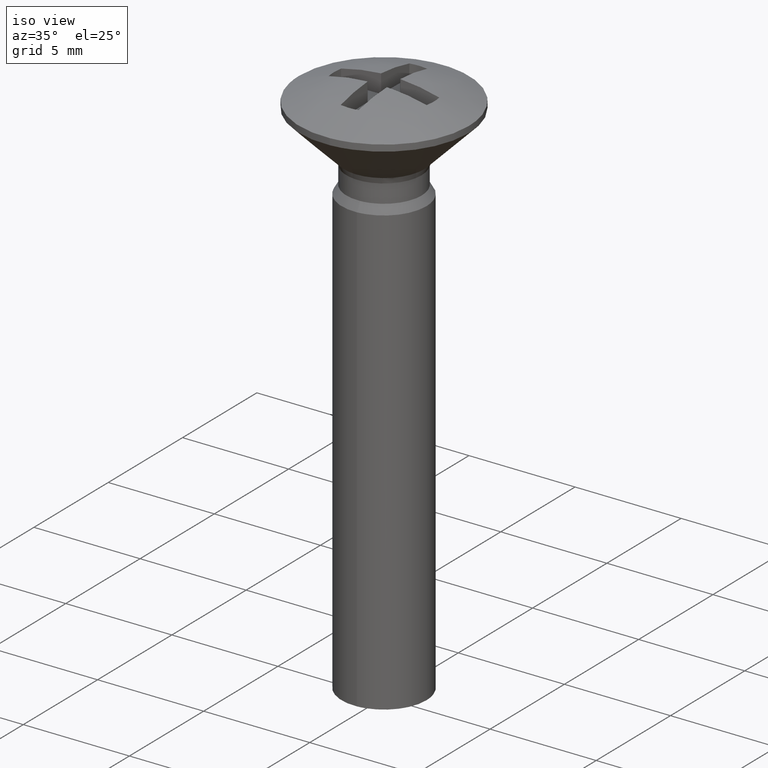
[diagram: clean part render]
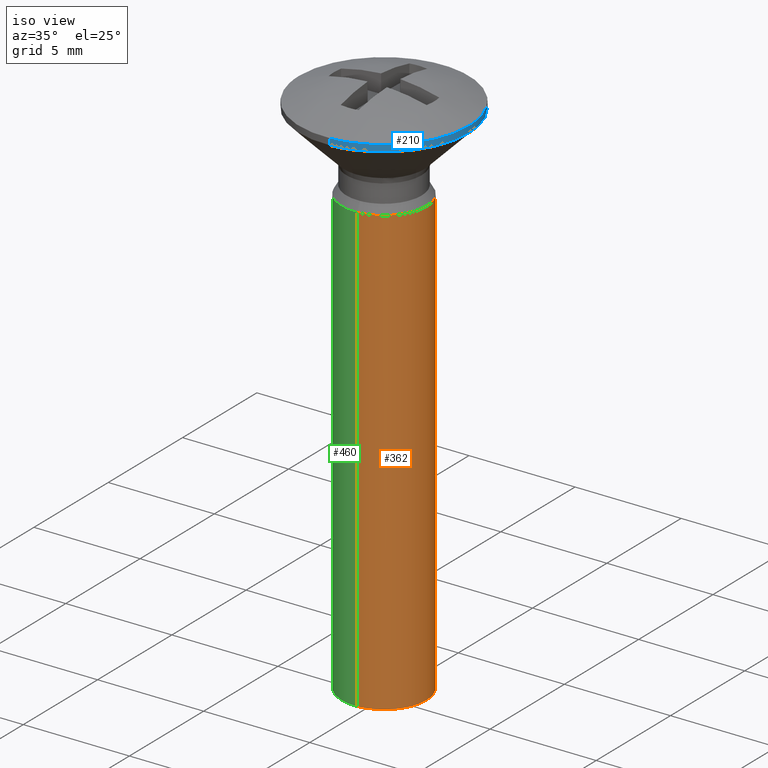
[diagram: same view with three faces highlighted in distinct colors, each labeled with its STEP entity id]
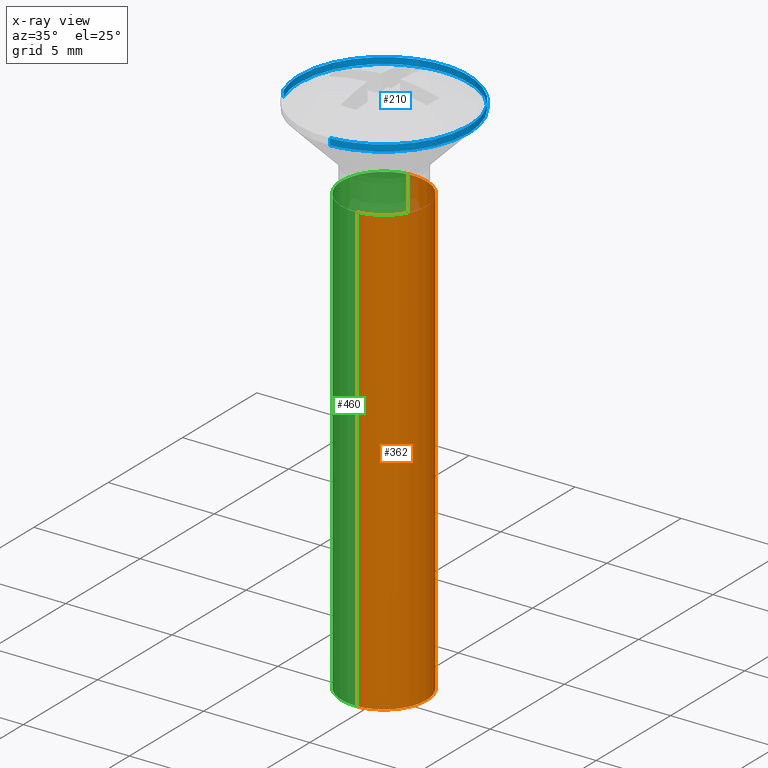
[diagram: x-ray of the same camera — body ghosted, the three highlighted faces saturated]
A machine part, iso view with three faces highlighted in distinct colors.
The next image is the same camera in x-ray (body ghosted, the three faces saturated) — at least one of them is partly hidden behind the body in this view.
Their STEP definitions:

[orange] entity #362 — the highlighted face is a freeform B-spline surface patch.
#260=CARTESIAN_POINT('',(-0.236068469313517,1.986019052727332,-3.425594999999999));
#261=CARTESIAN_POINT('',(-0.179229457275955,1.992775230897211,-3.425594999999999));
#262=CARTESIAN_POINT('',(-0.122097079069714,1.996269596843733,-3.425594999999999));
#263=CARTESIAN_POINT('',(1.874172517774020,2.118366675913447,-3.425594999999998));
#264=CARTESIAN_POINT('',(1.996269596843733,0.122097079069714,-3.425594999999999));
#265=CARTESIAN_POINT('',(2.118366675913447,-1.874172517774020,-3.425594999999998));
#266=CARTESIAN_POINT('',(0.122097079069714,-1.996269596843733,-3.425594999999999));
#267=CARTESIAN_POINT('',(-0.236068469313517,1.986019052727332,-25.539360125000009));
#268=CARTESIAN_POINT('',(-0.179229457275955,1.992775230897211,-25.539360125000009));
#269=CARTESIAN_POINT('',(-0.122097079069714,1.996269596843733,-25.539360125000009));
#270=CARTESIAN_POINT('',(1.874172517774020,2.118366675913447,-25.539360125000009));
#271=CARTESIAN_POINT('',(1.996269596843733,0.122097079069714,-25.539360125000009));
#272=CARTESIAN_POINT('',(2.118366675913447,-1.874172517774020,-25.539360125000009));
#273=CARTESIAN_POINT('',(0.122097079069714,-1.996269596843733,-25.539360125000009));
#281=(BOUNDED_SURFACE()B_SPLINE_SURFACE(2,1,((#260,#267),(#261,#268),(#262,#269),(#263,#270),(#264,#271),(#265,#272),(#266,#273)),.UNSPECIFIED.,.F.,.F.,.U.)B_SPLINE_SURFACE_WITH_KNOTS((3,2,2,3),(2,2),(0.0,0.132548339959391,3.446256838944149,6.759965337928908),(0.0,22.113765125000011),.UNSPECIFIED.)GEOMETRIC_REPRESENTATION_ITEM()RATIONAL_B_SPLINE_SURFACE(((0.977505800795127,0.977505800795127),(0.988284271247462,0.988284271247462),(1.0,1.0),(0.707106781186548,0.707106781186548),(1.0,1.0),(0.707106781186548,0.707106781186548),(1.0,1.0)))REPRESENTATION_ITEM('')SURFACE());
#282=CARTESIAN_POINT('',(-0.236066474314863,1.986019289861131,-24.999999999999989));
#283=VERTEX_POINT('',#282);
#284=CARTESIAN_POINT('',(2.0,0.0,-25.0));
#285=VERTEX_POINT('',#284);
#286=CARTESIAN_POINT('',(-0.236066474314863,1.986019289861132,-24.999999999999996));
#287=CARTESIAN_POINT('',(-0.118447231259208,2.0,-24.999999999999996));
#288=CARTESIAN_POINT('',(0.0,2.0,-25.0));
#289=CARTESIAN_POINT('',(2.000000000000000,2.000000000000000,-25.0));
#290=CARTESIAN_POINT('',(2.0,0.0,-25.0));
#298=(BOUNDED_CURVE()B_SPLINE_CURVE(2,(#286,#287,#288,#289,#290),.UNSPECIFIED.,.F.,.U.)B_SPLINE_CURVE_WITH_KNOTS((3,2,3),(0.229562643283036,0.250000000000000,0.500000000000000),.UNSPECIFIED.)CURVE()GEOMETRIC_REPRESENTATION_ITEM()RATIONAL_B_SPLINE_CURVE((0.956027086939192,0.976056147228519,1.0,0.707106781186548,1.0))REPRESENTATION_ITEM(''));
#299=EDGE_CURVE('',#283,#285,#298,.T.);
#300=ORIENTED_EDGE('',*,*,#299,.F.);
#301=CARTESIAN_POINT('',(-0.236066498881312,1.986019286941086,-3.951800000000000));
#302=VERTEX_POINT('',#301);
#303=CARTESIAN_POINT('',(-0.236066498881312,1.986019286941086,-3.951800000000000));
#304=CARTESIAN_POINT('',(-0.236066474314863,1.986019289861131,-24.999999999999989));
#305=QUASI_UNIFORM_CURVE('',1,(#303,#304),.UNSPECIFIED.,.F.,.U.);
#306=EDGE_CURVE('',#302,#283,#305,.T.);
#307=ORIENTED_EDGE('',*,*,#306,.F.);
#308=CARTESIAN_POINT('',(2.0,0.0,-3.951800000000000));
#309=VERTEX_POINT('',#308);
#310=CARTESIAN_POINT('',(-0.236066498881312,1.986019286941087,-3.951800000000001));
#311=CARTESIAN_POINT('',(-0.118447243672286,2.000000000000000,-3.951800000000000));
#312=CARTESIAN_POINT('',(0.0,2.0,-3.951800000000000));
#313=CARTESIAN_POINT('',(2.000000000000000,2.000000000000000,-3.951800000000000));
#314=CARTESIAN_POINT('',(2.0,0.0,-3.951800000000000));
#322=(BOUNDED_CURVE()B_SPLINE_CURVE(2,(#310,#311,#312,#313,#314),.UNSPECIFIED.,.F.,.U.)B_SPLINE_CURVE_WITH_KNOTS((3,2,3),(0.229562641192517,0.250000000000000,0.500000000000000),.UNSPECIFIED.)CURVE()GEOMETRIC_REPRESENTATION_ITEM()RATIONAL_B_SPLINE_CURVE((0.956027082841683,0.976056144779324,1.0,0.707106781186548,1.0))REPRESENTATION_ITEM(''));
#323=EDGE_CURVE('',#302,#309,#322,.T.);
#324=ORIENTED_EDGE('',*,*,#323,.T.);
#325=CARTESIAN_POINT('',(0.122097079094370,-1.996269596844734,-3.951800000008670));
#326=VERTEX_POINT('',#325);
#327=CARTESIAN_POINT('',(2.0,0.0,-3.951800000000000));
#328=CARTESIAN_POINT('',(2.0,-1.881412133718839,-3.951800000000000));
#329=CARTESIAN_POINT('',(0.122097079094370,-1.996269596844734,-3.951800000008669));
#337=(BOUNDED_CURVE()B_SPLINE_CURVE(2,(#327,#328,#329),.UNSPECIFIED.,.F.,.U.)B_SPLINE_CURVE_WITH_KNOTS((3,3),(0.500000000000000,0.739332962233496),.UNSPECIFIED.)CURVE()GEOMETRIC_REPRESENTATION_ITEM()RATIONAL_B_SPLINE_CURVE((1.0,0.719603993293092,0.976072041655044))REPRESENTATION_ITEM(''));
#338=EDGE_CURVE('',#309,#326,#337,.T.);
#339=ORIENTED_EDGE('',*,*,#338,.T.);
#340=CARTESIAN_POINT('',(0.122097079092342,-1.996269596842350,-25.0));
#341=VERTEX_POINT('',#340);
#342=CARTESIAN_POINT('',(0.122097079094370,-1.996269596844734,-3.951800000008670));
#343=CARTESIAN_POINT('',(0.122097079092342,-1.996269596842350,-25.0));
#344=QUASI_UNIFORM_CURVE('',1,(#342,#343),.UNSPECIFIED.,.F.,.U.);
#345=EDGE_CURVE('',#326,#341,#344,.T.);
#346=ORIENTED_EDGE('',*,*,#345,.T.);
#347=CARTESIAN_POINT('',(2.0,0.0,-25.0));
#348=CARTESIAN_POINT('',(2.000000000000000,-1.881412133768662,-25.000000000000004));
#349=CARTESIAN_POINT('',(0.122097079092342,-1.996269596842350,-25.0));
#357=(BOUNDED_CURVE()B_SPLINE_CURVE(2,(#347,#348,#349),.UNSPECIFIED.,.F.,.U.)B_SPLINE_CURVE_WITH_KNOTS((3,3),(0.500000000000000,0.739332962238057),.UNSPECIFIED.)CURVE()GEOMETRIC_REPRESENTATION_ITEM()RATIONAL_B_SPLINE_CURVE((1.0,0.719603993287748,0.976072041664819))REPRESENTATION_ITEM(''));
#358=EDGE_CURVE('',#285,#341,#357,.T.);
#359=ORIENTED_EDGE('',*,*,#358,.F.);
#360=EDGE_LOOP('',(#300,#307,#324,#339,#346,#359));
#361=FACE_OUTER_BOUND('',#360,.T.);
#362=ADVANCED_FACE('',(#361),#281,.T.);

[blue] entity #210 — the highlighted face is a freeform B-spline surface patch.
#44=CARTESIAN_POINT('',(-3.744574315106628,-1.406471897566288,0.007444087192802));
#45=CARTESIAN_POINT('',(-3.955856077460602,-0.843957806861633,0.007444087192802));
#46=CARTESIAN_POINT('',(-3.992539193687467,-0.244194158139428,0.007444087192802));
#47=CARTESIAN_POINT('',(-4.236733351826894,3.748345035548039,0.007444087192802));
#48=CARTESIAN_POINT('',(-0.244194158139428,3.992539193687467,0.007444087192802));
#49=CARTESIAN_POINT('',(3.748345035548039,4.236733351826894,0.007444087192802));
#50=CARTESIAN_POINT('',(3.992539193687467,0.244194158139428,0.007444087192802));
#51=CARTESIAN_POINT('',(4.236733351826894,-3.748345035548039,0.007444087192802));
#52=CARTESIAN_POINT('',(0.244194158139428,-3.992539193687467,0.007444087192802));
#53=CARTESIAN_POINT('',(-3.744574315106628,-1.406471897566288,-0.307686102179810));
#54=CARTESIAN_POINT('',(-3.955856077460602,-0.843957806861633,-0.307686102179810));
#55=CARTESIAN_POINT('',(-3.992539193687467,-0.244194158139428,-0.307686102179810));
#56=CARTESIAN_POINT('',(-4.236733351826894,3.748345035548039,-0.307686102179810));
#57=CARTESIAN_POINT('',(-0.244194158139428,3.992539193687467,-0.307686102179810));
#58=CARTESIAN_POINT('',(3.748345035548039,4.236733351826894,-0.307686102179810));
#59=CARTESIAN_POINT('',(3.992539193687467,0.244194158139428,-0.307686102179810));
#60=CARTESIAN_POINT('',(4.236733351826894,-3.748345035548039,-0.307686102179810));
#61=CARTESIAN_POINT('',(0.244194158139428,-3.992539193687467,-0.307686102179810));
#69=(BOUNDED_SURFACE()B_SPLINE_SURFACE(2,1,((#44,#53),(#45,#54),(#46,#55),(#47,#56),(#48,#57),(#49,#58),(#50,#59),(#51,#60),(#52,#61)),.UNSPECIFIED.,.F.,.F.,.U.)B_SPLINE_SURFACE_WITH_KNOTS((3,2,2,2,3),(2,2),(0.0,1.325483399593904,7.952900397563421,14.580317395532941,21.207734393502459),(0.0,0.315130189372612),.UNSPECIFIED.)GEOMETRIC_REPRESENTATION_ITEM()RATIONAL_B_SPLINE_SURFACE(((0.906274169979695,0.906274169979695),(0.941421356237309,0.941421356237309),(1.0,1.0),(0.707106781186548,0.707106781186548),(1.0,1.0),(0.707106781186548,0.707106781186548),(1.0,1.0),(0.707106781186548,0.707106781186548),(1.0,1.0)))REPRESENTATION_ITEM('')SURFACE());
#70=CARTESIAN_POINT('',(-3.744574315104922,-1.406471897570834,-0.000054549080193));
#71=VERTEX_POINT('',#70);
#72=CARTESIAN_POINT('',(-4.0,0.0,-0.000054549080193));
#73=VERTEX_POINT('',#72);
#74=CARTESIAN_POINT('',(-3.744574315104922,-1.406471897570833,-0.000054549080193));
#75=CARTESIAN_POINT('',(-4.0,-0.726429544272058,-0.000054549080193));
#76=CARTESIAN_POINT('',(-4.0,0.0,-0.000054549080193));
#84=(BOUNDED_CURVE()B_SPLINE_CURVE(2,(#74,#75,#76),.UNSPECIFIED.,.F.,.U.)B_SPLINE_CURVE_WITH_KNOTS((3,3),(0.940284170898526,1.0),.UNSPECIFIED.)CURVE()GEOMETRIC_REPRESENTATION_ITEM()RATIONAL_B_SPLINE_CURVE((0.893499554635297,0.930038554401421,1.0))REPRESENTATION_ITEM(''));
#85=EDGE_CURVE('',#71,#73,#84,.T.);
#86=ORIENTED_EDGE('',*,*,#85,.T.);
#87=CARTESIAN_POINT('',(4.0,0.0,-0.000054549080193));
#88=VERTEX_POINT('',#87);
#89=CARTESIAN_POINT('',(-4.0,0.0,-0.000054549080193));
#90=CARTESIAN_POINT('',(-4.000000000000000,4.000000000000000,-0.000054549080193));
#91=CARTESIAN_POINT('',(0.0,4.0,-0.000054549080193));
#92=CARTESIAN_POINT('',(4.000000000000000,4.000000000000000,-0.000054549080193));
#93=CARTESIAN_POINT('',(4.0,0.0,-0.000054549080193));
#101=(BOUNDED_CURVE()B_SPLINE_CURVE(2,(#89,#90,#91,#92,#93),.UNSPECIFIED.,.F.,.U.)B_SPLINE_CURVE_WITH_KNOTS((3,2,3),(0.0,0.250000000000000,0.500000000000000),.UNSPECIFIED.)CURVE()GEOMETRIC_REPRESENTATION_ITEM()RATIONAL_B_SPLINE_CURVE((1.0,0.707106781186548,1.0,0.707106781186548,1.0))REPRESENTATION_ITEM(''));
#102=EDGE_CURVE('',#73,#88,#101,.T.);
#103=ORIENTED_EDGE('',*,*,#102,.T.);
#104=CARTESIAN_POINT('',(0.244187181445966,-3.992539620388083,-0.000054549079474));
#105=VERTEX_POINT('',#104);
#106=CARTESIAN_POINT('',(4.0,0.0,-0.000054549080193));
#107=CARTESIAN_POINT('',(4.0,-3.762830855196727,-0.000054549080193));
#108=CARTESIAN_POINT('',(0.244187181445966,-3.992539620388083,-0.000054549079474));
#116=(BOUNDED_CURVE()B_SPLINE_CURVE(2,(#106,#107,#108),.UNSPECIFIED.,.F.,.U.)B_SPLINE_CURVE_WITH_KNOTS((3,3),(0.500000000000000,0.739333263755935),.UNSPECIFIED.)CURVE()GEOMETRIC_REPRESENTATION_ITEM()RATIONAL_B_SPLINE_CURVE((1.0,0.719603640037580,0.976072687875880))REPRESENTATION_ITEM(''));
#117=EDGE_CURVE('',#88,#105,#116,.T.);
#118=ORIENTED_EDGE('',*,*,#117,.T.);
#119=CARTESIAN_POINT('',(0.244187265558266,-3.992539615243847,-0.299999999999990));
#120=VERTEX_POINT('',#119);
#121=CARTESIAN_POINT('',(0.244187181445966,-3.992539620388083,-0.000054549079474));
#122=CARTESIAN_POINT('',(0.244187265558266,-3.992539615243847,-0.299999999999990));
#123=QUASI_UNIFORM_CURVE('',1,(#121,#122),.UNSPECIFIED.,.F.,.U.);
#124=EDGE_CURVE('',#105,#120,#123,.T.);
#125=ORIENTED_EDGE('',*,*,#124,.T.);
#126=CARTESIAN_POINT('',(4.0,0.0,-0.299999999999990));
#127=VERTEX_POINT('',#126);
#128=CARTESIAN_POINT('',(4.0,0.0,-0.299999999999990));
#129=CARTESIAN_POINT('',(4.000000000000001,-3.762830775775668,-0.299999999999990));
#130=CARTESIAN_POINT('',(0.244187265558266,-3.992539615243847,-0.299999999999990));
#138=(BOUNDED_CURVE()B_SPLINE_CURVE(2,(#128,#129,#130),.UNSPECIFIED.,.F.,.U.)B_SPLINE_CURVE_WITH_KNOTS((3,3),(0.500000000000000,0.739333260120827),.UNSPECIFIED.)CURVE()GEOMETRIC_REPRESENTATION_ITEM()RATIONAL_B_SPLINE_CURVE((1.0,0.719603644296375,0.976072680085130))REPRESENTATION_ITEM(''));
#139=EDGE_CURVE('',#127,#120,#138,.T.);
#140=ORIENTED_EDGE('',*,*,#139,.F.);
#141=CARTESIAN_POINT('',(1.001520016257078,3.872590561506795,-0.299999999995604));
#142=VERTEX_POINT('',#141);
#143=CARTESIAN_POINT('',(1.001520016257078,3.872590561506795,-0.299999999995604));
#144=CARTESIAN_POINT('',(4.000000000000001,3.097130911304047,-0.299999999999990));
#145=CARTESIAN_POINT('',(4.0,0.0,-0.299999999999990));
#153=(BOUNDED_CURVE()B_SPLINE_CURVE(2,(#143,#144,#145),.UNSPECIFIED.,.F.,.U.)B_SPLINE_CURVE_WITH_KNOTS((3,3),(0.292726229713621,0.500000000000000),.UNSPECIFIED.)CURVE()GEOMETRIC_REPRESENTATION_ITEM()RATIONAL_B_SPLINE_CURVE((0.916996154471756,0.757163672980889,1.0))REPRESENTATION_ITEM(''));
#154=EDGE_CURVE('',#142,#127,#153,.T.);
#155=ORIENTED_EDGE('',*,*,#154,.F.);
#156=CARTESIAN_POINT('',(-1.678368449808747,3.630851049919546,-0.299999999998079));
#157=VERTEX_POINT('',#156);
#158=CARTESIAN_POINT('',(-1.678368449808748,3.630851049919545,-0.299999999998079));
#159=CARTESIAN_POINT('',(-0.879780479976421,4.000000000000001,-0.299999999999990));
#160=CARTESIAN_POINT('',(0.0,4.0,-0.299999999999990));
#161=CARTESIAN_POINT('',(0.508864272044298,4.000000000000001,-0.299999999999990));
#162=CARTESIAN_POINT('',(1.001520016257078,3.872590561506795,-0.299999999995604));
#170=(BOUNDED_CURVE()B_SPLINE_CURVE(2,(#158,#159,#160,#161,#162),.UNSPECIFIED.,.F.,.U.)B_SPLINE_CURVE_WITH_KNOTS((3,2,3),(0.178730602232853,0.250000000000000,0.292726229713621),.UNSPECIFIED.)CURVE()GEOMETRIC_REPRESENTATION_ITEM()RATIONAL_B_SPLINE_CURVE((0.880611827927097,0.916502706740336,1.0,0.949943108205658,0.916996154471756))REPRESENTATION_ITEM(''));
#171=EDGE_CURVE('',#157,#142,#170,.T.);
#172=ORIENTED_EDGE('',*,*,#171,.F.);
#173=CARTESIAN_POINT('',(-4.0,0.0,-0.299999999999990));
#174=VERTEX_POINT('',#173);
#175=CARTESIAN_POINT('',(-4.0,0.0,-0.299999999999990));
#176=CARTESIAN_POINT('',(-4.000000000000000,2.557672036950856,-0.299999999999990));
#177=CARTESIAN_POINT('',(-1.678368449808747,3.630851049919546,-0.299999999998079));
#185=(BOUNDED_CURVE()B_SPLINE_CURVE(2,(#175,#176,#177),.UNSPECIFIED.,.F.,.U.)B_SPLINE_CURVE_WITH_KNOTS((3,3),(0.0,0.178730602232853),.UNSPECIFIED.)CURVE()GEOMETRIC_REPRESENTATION_ITEM()RATIONAL_B_SPLINE_CURVE((1.0,0.790604074446212,0.880611827927097))REPRESENTATION_ITEM(''));
#186=EDGE_CURVE('',#174,#157,#185,.T.);
#187=ORIENTED_EDGE('',*,*,#186,.F.);
#188=CARTESIAN_POINT('',(-3.744574315104923,-1.406471897570832,-0.299999999999990));
#189=VERTEX_POINT('',#188);
#190=CARTESIAN_POINT('',(-3.744574315104922,-1.406471897570832,-0.299999999999990));
#191=CARTESIAN_POINT('',(-4.000000000000001,-0.726429544272057,-0.299999999999990));
#192=CARTESIAN_POINT('',(-4.0,0.0,-0.299999999999990));
#200=(BOUNDED_CURVE()B_SPLINE_CURVE(2,(#190,#191,#192),.UNSPECIFIED.,.F.,.U.)B_SPLINE_CURVE_WITH_KNOTS((3,3),(0.940284170898526,1.0),.UNSPECIFIED.)CURVE()GEOMETRIC_REPRESENTATION_ITEM()RATIONAL_B_SPLINE_CURVE((0.893499554635297,0.930038554401421,1.0))REPRESENTATION_ITEM(''));
#201=EDGE_CURVE('',#189,#174,#200,.T.);
#202=ORIENTED_EDGE('',*,*,#201,.F.);
#203=CARTESIAN_POINT('',(-3.744574315104922,-1.406471897570834,-0.000054549080193));
#204=CARTESIAN_POINT('',(-3.744574315104923,-1.406471897570832,-0.299999999999990));
#205=QUASI_UNIFORM_CURVE('',1,(#203,#204),.UNSPECIFIED.,.F.,.U.);
#206=EDGE_CURVE('',#71,#189,#205,.T.);
#207=ORIENTED_EDGE('',*,*,#206,.F.);
#208=EDGE_LOOP('',(#86,#103,#118,#125,#140,#155,#172,#187,#202,#207));
#209=FACE_OUTER_BOUND('',#208,.T.);
#210=ADVANCED_FACE('',(#209),#69,.T.);

[green] entity #460 — the highlighted face is a freeform B-spline surface patch.
#282=CARTESIAN_POINT('',(-0.236066474314863,1.986019289861131,-24.999999999999989));
#283=VERTEX_POINT('',#282);
#301=CARTESIAN_POINT('',(-0.236066498881312,1.986019286941086,-3.951800000000000));
#302=VERTEX_POINT('',#301);
#303=CARTESIAN_POINT('',(-0.236066498881312,1.986019286941086,-3.951800000000000));
#304=CARTESIAN_POINT('',(-0.236066474314863,1.986019289861131,-24.999999999999989));
#305=QUASI_UNIFORM_CURVE('',1,(#303,#304),.UNSPECIFIED.,.F.,.U.);
#306=EDGE_CURVE('',#302,#283,#305,.T.);
#325=CARTESIAN_POINT('',(0.122097079094370,-1.996269596844734,-3.951800000008670));
#326=VERTEX_POINT('',#325);
#340=CARTESIAN_POINT('',(0.122097079092342,-1.996269596842350,-25.0));
#341=VERTEX_POINT('',#340);
#342=CARTESIAN_POINT('',(0.122097079094370,-1.996269596844734,-3.951800000008670));
#343=CARTESIAN_POINT('',(0.122097079092342,-1.996269596842350,-25.0));
#344=QUASI_UNIFORM_CURVE('',1,(#342,#343),.UNSPECIFIED.,.F.,.U.);
#345=EDGE_CURVE('',#326,#341,#344,.T.);
#363=CARTESIAN_POINT('',(0.122097079069714,-1.996269596843733,-3.425594999999999));
#364=CARTESIAN_POINT('',(-1.874172517774020,-2.118366675913447,-3.425594999999998));
#365=CARTESIAN_POINT('',(-1.996269596843733,-0.122097079069714,-3.425594999999999));
#366=CARTESIAN_POINT('',(-2.111572393465055,1.763086981679002,-3.425594999999998));
#367=CARTESIAN_POINT('',(-0.236068469313517,1.986019052727332,-3.425594999999999));
#368=CARTESIAN_POINT('',(0.122097079069714,-1.996269596843733,-25.539360125000009));
#369=CARTESIAN_POINT('',(-1.874172517774020,-2.118366675913447,-25.539360125000009));
#370=CARTESIAN_POINT('',(-1.996269596843733,-0.122097079069714,-25.539360125000009));
#371=CARTESIAN_POINT('',(-2.111572393465055,1.763086981679002,-25.539360125000009));
#372=CARTESIAN_POINT('',(-0.236068469313517,1.986019052727332,-25.539360125000009));
#380=(BOUNDED_SURFACE()B_SPLINE_SURFACE(2,1,((#363,#368),(#364,#369),(#365,#370),(#366,#371),(#367,#372)),.UNSPECIFIED.,.F.,.F.,.U.)B_SPLINE_SURFACE_WITH_KNOTS((3,2,3),(2,2),(0.0,3.313708498984759,6.494868658010128),(0.0,22.113765125000011),.UNSPECIFIED.)GEOMETRIC_REPRESENTATION_ITEM()RATIONAL_B_SPLINE_SURFACE(((1.0,1.0),(0.707106781186548,0.707106781186548),(1.0,1.0),(0.718822509939086,0.718822509939086),(0.977505800795127,0.977505800795127)))REPRESENTATION_ITEM('')SURFACE());
#381=CARTESIAN_POINT('',(-2.0,0.0,-25.0));
#382=VERTEX_POINT('',#381);
#383=CARTESIAN_POINT('',(-2.0,0.0,-25.0));
#384=CARTESIAN_POINT('',(-2.000000000000000,1.776350848845448,-25.000000000000011));
#385=CARTESIAN_POINT('',(-0.236066474314863,1.986019289861132,-24.999999999999996));
#393=(BOUNDED_CURVE()B_SPLINE_CURVE(2,(#383,#384,#385),.UNSPECIFIED.,.F.,.U.)B_SPLINE_CURVE_WITH_KNOTS((3,3),(0.0,0.229562643283036),.UNSPECIFIED.)CURVE()GEOMETRIC_REPRESENTATION_ITEM()RATIONAL_B_SPLINE_CURVE((1.0,0.731050633958029,0.956027086939192))REPRESENTATION_ITEM(''));
#394=EDGE_CURVE('',#382,#283,#393,.T.);
#395=ORIENTED_EDGE('',*,*,#394,.F.);
#396=CARTESIAN_POINT('',(0.122097079092342,-1.996269596842350,-25.0));
#397=CARTESIAN_POINT('',(0.061105526619869,-2.000000000000000,-25.0));
#398=CARTESIAN_POINT('',(0.0,-2.0,-25.0));
#399=CARTESIAN_POINT('',(-2.000000000000000,-2.000000000000000,-25.0));
#400=CARTESIAN_POINT('',(-2.0,0.0,-25.0));
#408=(BOUNDED_CURVE()B_SPLINE_CURVE(2,(#396,#397,#398,#399,#400),.UNSPECIFIED.,.F.,.U.)B_SPLINE_CURVE_WITH_KNOTS((3,2,3),(0.739332962238057,0.750000000000000,1.0),.UNSPECIFIED.)CURVE()GEOMETRIC_REPRESENTATION_ITEM()RATIONAL_B_SPLINE_CURVE((0.976072041664818,0.987502787898799,1.0,0.707106781186548,1.0))REPRESENTATION_ITEM(''));
#409=EDGE_CURVE('',#341,#382,#408,.T.);
#410=ORIENTED_EDGE('',*,*,#409,.F.);
#411=ORIENTED_EDGE('',*,*,#345,.F.);
#412=CARTESIAN_POINT('',(-1.872287157541096,-0.703235948826450,-3.951800000006558));
#413=VERTEX_POINT('',#412);
#414=CARTESIAN_POINT('',(0.122097079094370,-1.996269596844734,-3.951800000008670));
#415=CARTESIAN_POINT('',(0.061105526646322,-2.000000000000000,-3.951800000000000));
#416=CARTESIAN_POINT('',(0.0,-2.0,-3.951800000000000));
#417=CARTESIAN_POINT('',(-1.385219191322495,-2.000000000000000,-3.951800000000000));
#418=CARTESIAN_POINT('',(-1.872287157541095,-0.703235948826450,-3.951800000006558));
#426=(BOUNDED_CURVE()B_SPLINE_CURVE(2,(#414,#415,#416,#417,#418),.UNSPECIFIED.,.F.,.U.)B_SPLINE_CURVE_WITH_KNOTS((3,2,3),(0.739332962233497,0.750000000000000,0.940284170891827),.UNSPECIFIED.)CURVE()GEOMETRIC_REPRESENTATION_ITEM()RATIONAL_B_SPLINE_CURVE((0.976072041655045,0.987502787893457,1.0,0.777068226792974,0.893499554627099))REPRESENTATION_ITEM(''));
#427=EDGE_CURVE('',#326,#413,#426,.T.);
#428=ORIENTED_EDGE('',*,*,#427,.T.);
#429=CARTESIAN_POINT('',(-2.0,0.0,-3.951800000000000));
#430=VERTEX_POINT('',#429);
#431=CARTESIAN_POINT('',(-1.872287157541095,-0.703235948826450,-3.951800000006558));
#432=CARTESIAN_POINT('',(-2.000000000000000,-0.363214772179837,-3.951800000000000));
#433=CARTESIAN_POINT('',(-2.0,0.0,-3.951800000000000));
#441=(BOUNDED_CURVE()B_SPLINE_CURVE(2,(#431,#432,#433),.UNSPECIFIED.,.F.,.U.)B_SPLINE_CURVE_WITH_KNOTS((3,3),(0.940284170891827,1.0),.UNSPECIFIED.)CURVE()GEOMETRIC_REPRESENTATION_ITEM()RATIONAL_B_SPLINE_CURVE((0.893499554627099,0.930038554393573,1.0))REPRESENTATION_ITEM(''));
#442=EDGE_CURVE('',#413,#430,#441,.T.);
#443=ORIENTED_EDGE('',*,*,#442,.T.);
#444=CARTESIAN_POINT('',(-2.0,0.0,-3.951800000000000));
#445=CARTESIAN_POINT('',(-1.999999999999999,1.776350826717857,-3.951800000000001));
#446=CARTESIAN_POINT('',(-0.236066498881312,1.986019286941087,-3.951800000000001));
#454=(BOUNDED_CURVE()B_SPLINE_CURVE(2,(#444,#445,#446),.UNSPECIFIED.,.F.,.U.)B_SPLINE_CURVE_WITH_KNOTS((3,3),(0.0,0.229562641192517),.UNSPECIFIED.)CURVE()GEOMETRIC_REPRESENTATION_ITEM()RATIONAL_B_SPLINE_CURVE((1.0,0.731050636407224,0.956027082841683))REPRESENTATION_ITEM(''));
#455=EDGE_CURVE('',#430,#302,#454,.T.);
#456=ORIENTED_EDGE('',*,*,#455,.T.);
#457=ORIENTED_EDGE('',*,*,#306,.T.);
#458=EDGE_LOOP('',(#395,#410,#411,#428,#443,#456,#457));
#459=FACE_OUTER_BOUND('',#458,.T.);
#460=ADVANCED_FACE('',(#459),#380,.T.);